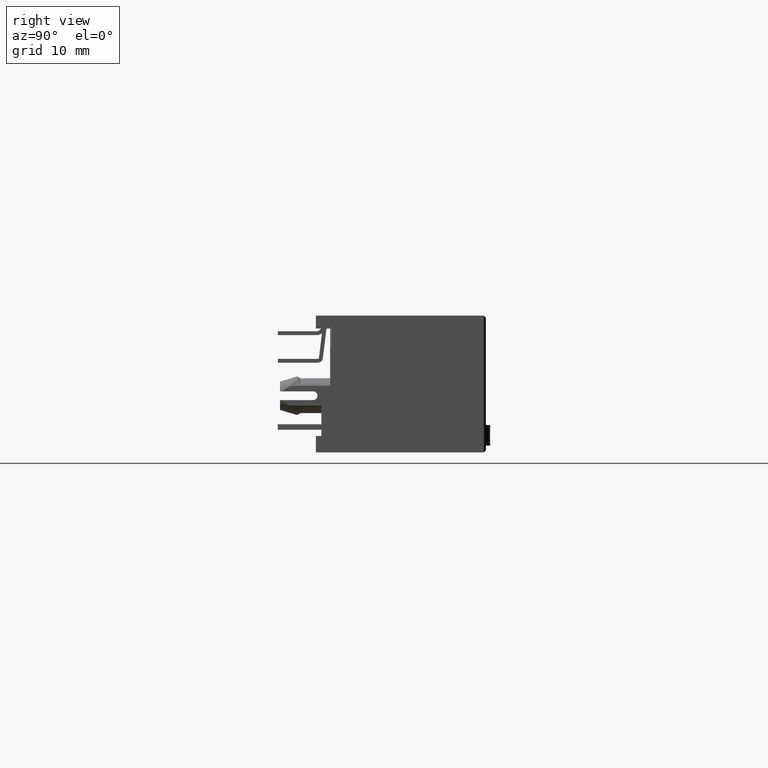
[diagram: clean part render]
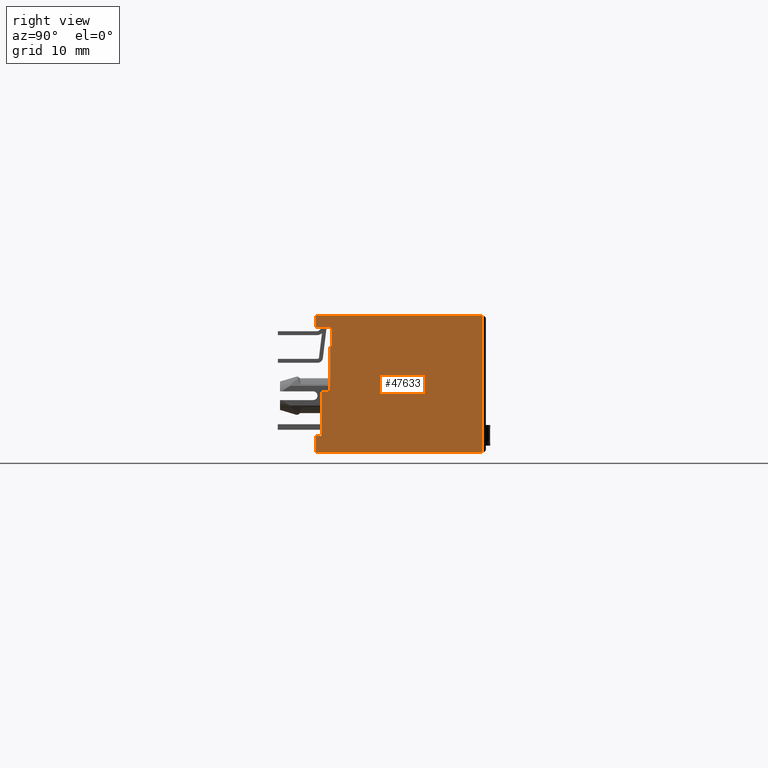
[diagram: same view with one face highlighted and labeled with its STEP entity id]
A machine part, right view. The second image highlights one B-rep face of the part: STEP entity #47633.
In plain terms, the highlighted planar face has unit normal (1, 0, 0).
Its self-contained STEP definition (entity closure, byte-faithful):
#681 = CARTESIAN_POINT ( 'NONE',  ( 31.50000000000000000, -7.799999999999999800, 5.250000000000000000 ) ) ;
#1622 = CARTESIAN_POINT ( 'NONE',  ( 31.50000000000000000, -6.349999999999997900, 3.449999999999999700 ) ) ;
#1845 = CARTESIAN_POINT ( 'NONE',  ( 31.49999999999801400, -6.349999999998009200, 4.649999999999999500 ) ) ;
#2806 = CARTESIAN_POINT ( 'NONE',  ( 31.50000000000000000, 7.499999999999996400, -2.066666666666667300 ) ) ;
#3329 = EDGE_CURVE ( 'NONE', #17004, #58897, #34667, .T. ) ;
#3683 = VERTEX_POINT ( 'NONE', #66092 ) ;
#3731 = ORIENTED_EDGE ( 'NONE', *, *, #48594, .T. ) ;
#4063 = ORIENTED_EDGE ( 'NONE', *, *, #62283, .F. ) ;
#4597 = CARTESIAN_POINT ( 'NONE',  ( 31.50000000000000000, -8.105999999999999900, 6.551000000000000200 ) ) ;
#4977 = EDGE_CURVE ( 'NONE', #25314, #41184, #49840, .T. ) ;
#5112 = CARTESIAN_POINT ( 'NONE',  ( 31.50000000000000000, -6.833333333333332100, 5.250000000000000000 ) ) ;
#5237 = CARTESIAN_POINT ( 'NONE',  ( 31.50000000000000000, -7.299999999999998900, -4.750000000000000900 ) ) ;
#6127 = CARTESIAN_POINT ( 'NONE',  ( 31.50000000000000000, -7.800000000000000700, 6.299999999999999800 ) ) ;
#6828 = CARTESIAN_POINT ( 'NONE',  ( 31.50000000000000000, -7.799999999999999800, 5.599999999999999600 ) ) ;
#7057 = ORIENTED_EDGE ( 'NONE', *, *, #60345, .F. ) ;
#8380 = EDGE_CURVE ( 'NONE', #33151, #22509, #26673, .T. ) ;
#8397 = CARTESIAN_POINT ( 'NONE',  ( 31.50000000000000000, -7.299999999999999800, -2.016666666666666200 ) ) ;
#10380 = CARTESIAN_POINT ( 'NONE',  ( 31.50000000000000000, -7.800000000000000700, -6.250000000000000000 ) ) ;
#10908 = B_SPLINE_CURVE_WITH_KNOTS ( 'NONE', 3,
 ( #48240, #5112, #37768, #53898 ),
 .UNSPECIFIED., .F., .F.,
 ( 4, 4 ),
 ( 0.0000000000000000000, 1.000000000000000000 ),
 .UNSPECIFIED. ) ;
#11488 = CARTESIAN_POINT ( 'NONE',  ( 31.50000000000000000, -6.500000000000000900, -0.6500000000000003600 ) ) ;
#12539 = CARTESIAN_POINT ( 'NONE',  ( 31.50000000000000000, -7.799999999999999800, 5.950000000000000200 ) ) ;
#13917 = ORIENTED_EDGE ( 'NONE', *, *, #46560, .F. ) ;
#15230 = CARTESIAN_POINT ( 'NONE',  ( 31.50000000000000000, -6.500000000000000900, 3.449999999999999700 ) ) ;
#15398 = CARTESIAN_POINT ( 'NONE',  ( 31.50000000000000000, -7.800000000000000700, -4.750000000000000900 ) ) ;
#16355 = CARTESIAN_POINT ( 'NONE',  ( 31.50000000000000000, -6.500000000000000900, -0.6500000000000003600 ) ) ;
#16621 = CARTESIAN_POINT ( 'NONE',  ( 31.50000000000000000, -7.466666666666666800, -4.750000000000000000 ) ) ;
#17004 = VERTEX_POINT ( 'NONE', #64333 ) ;
#17268 = CARTESIAN_POINT ( 'NONE',  ( 31.50000000000000000, -6.349999999999997900, 5.249999999999999100 ) ) ;
#18295 = VERTEX_POINT ( 'NONE', #20304 ) ;
#18755 = B_SPLINE_CURVE_WITH_KNOTS ( 'NONE', 3,
 ( #10380, #59410, #48537, #15398 ),
 .UNSPECIFIED., .F., .F.,
 ( 4, 4 ),
 ( 0.0000000000000000000, 1.000000000000000000 ),
 .UNSPECIFIED. ) ;
#18948 = ORIENTED_EDGE ( 'NONE', *, *, #43273, .F. ) ;
#19089 = VERTEX_POINT ( 'NONE', #55471 ) ;
#19770 = CARTESIAN_POINT ( 'NONE',  ( 31.50000000000000000, -6.349999999999997900, 3.449999999999999700 ) ) ;
#20304 = CARTESIAN_POINT ( 'NONE',  ( 31.50000000000000000, 7.500000000000000000, -6.250000000000000900 ) ) ;
#21029 = EDGE_CURVE ( 'NONE', #41184, #3683, #10908, .T. ) ;
#21528 = CARTESIAN_POINT ( 'NONE',  ( 31.50000000000000000, -7.800000000000000700, -4.750000000000000900 ) ) ;
#21626 = CARTESIAN_POINT ( 'NONE',  ( 31.50000000000000000, -6.500000000000000900, 0.7166666666666662300 ) ) ;
#22331 = CARTESIAN_POINT ( 'NONE',  ( 31.50000000000000000, -6.500000000000000900, 3.449999999999999700 ) ) ;
#22509 = VERTEX_POINT ( 'NONE', #54159 ) ;
#23873 = CARTESIAN_POINT ( 'NONE',  ( 31.50000000000000000, 2.399999999999999500, -6.249999999999999100 ) ) ;
#24111 = CARTESIAN_POINT ( 'NONE',  ( 31.50000000000000000, 7.500000000000000000, -6.250000000000000900 ) ) ;
#24301 = VERTEX_POINT ( 'NONE', #16355 ) ;
#25314 = VERTEX_POINT ( 'NONE', #55866 ) ;
#26673 = B_SPLINE_CURVE_WITH_KNOTS ( 'NONE', 3,
 ( #45847, #56952, #8397, #62414 ),
 .UNSPECIFIED., .F., .F.,
 ( 4, 4 ),
 ( 0.0000000000000000000, 1.000000000000000000 ),
 .UNSPECIFIED. ) ;
#27864 = EDGE_LOOP ( 'NONE', ( #7057, #44634, #29077, #18948, #13917, #4063, #49273, #39495, #35975, #38884, #3731, #56994 ) ) ;
#28836 = CARTESIAN_POINT ( 'NONE',  ( 31.49999999999801400, -6.349999999998009200, 4.049999999999999800 ) ) ;
#29077 = ORIENTED_EDGE ( 'NONE', *, *, #4977, .F. ) ;
#29619 = CARTESIAN_POINT ( 'NONE',  ( 31.50000000000000000, 2.399999999999999500, 6.299999999999999800 ) ) ;
#30087 = CARTESIAN_POINT ( 'NONE',  ( 31.50000000000000000, -7.800000000000000700, 6.299999999999999800 ) ) ;
#30800 = B_SPLINE_CURVE_WITH_KNOTS ( 'NONE', 3,
 ( #62279, #2806, #68930, #63457 ),
 .UNSPECIFIED., .F., .F.,
 ( 4, 4 ),
 ( 0.0000000000000000000, 1.000000000000000000 ),
 .UNSPECIFIED. ) ;
#32157 = CARTESIAN_POINT ( 'NONE',  ( 31.50000000000000000, -6.349999999999997900, 5.249999999999999100 ) ) ;
#32645 = CARTESIAN_POINT ( 'NONE',  ( 31.50000000000000000, -7.633333333333332900, -4.750000000000000000 ) ) ;
#33151 = VERTEX_POINT ( 'NONE', #46919 ) ;
#34667 = B_SPLINE_CURVE_WITH_KNOTS ( 'NONE', 3,
 ( #62581, #29619, #51695, #30087 ),
 .UNSPECIFIED., .F., .F.,
 ( 4, 4 ),
 ( 0.0000000000000000000, 1.000000000000000000 ),
 .UNSPECIFIED. ) ;
#34954 = FACE_OUTER_BOUND ( 'NONE', #27864, .T. ) ;
#35834 = B_SPLINE_CURVE_WITH_KNOTS ( 'NONE', 3,
 ( #41234, #41473, #57322, #62795 ),
 .UNSPECIFIED., .F., .F.,
 ( 4, 4 ),
 ( 0.0000000000000000000, 1.000000000000000000 ),
 .UNSPECIFIED. ) ;
#35975 = ORIENTED_EDGE ( 'NONE', *, *, #42445, .F. ) ;
#37768 = CARTESIAN_POINT ( 'NONE',  ( 31.50000000000000000, -7.316666666666666400, 5.250000000000000000 ) ) ;
#38884 = ORIENTED_EDGE ( 'NONE', *, *, #59487, .T. ) ;
#39495 = ORIENTED_EDGE ( 'NONE', *, *, #51757, .F. ) ;
#40672 = CARTESIAN_POINT ( 'NONE',  ( 31.50000000000000000, -6.399999999999998600, 3.449999999999999700 ) ) ;
#41184 = VERTEX_POINT ( 'NONE', #32157 ) ;
#41234 = CARTESIAN_POINT ( 'NONE',  ( 31.50000000000000000, -7.299999999999998900, -0.6500000000000003600 ) ) ;
#41473 = CARTESIAN_POINT ( 'NONE',  ( 31.50000000000000000, -7.033333333333333200, -0.6500000000000001300 ) ) ;
#41602 = AXIS2_PLACEMENT_3D ( 'NONE', #4597, #58382, #42277 ) ;
#42277 = DIRECTION ( 'NONE',  ( 0.0000000000000000000, 0.0000000000000000000, -1.000000000000000000 ) ) ;
#42445 = EDGE_CURVE ( 'NONE', #66449, #19089, #18755, .T. ) ;
#43273 = EDGE_CURVE ( 'NONE', #67081, #25314, #50432, .T. ) ;
#44634 = ORIENTED_EDGE ( 'NONE', *, *, #21029, .F. ) ;
#44822 = B_SPLINE_CURVE_WITH_KNOTS ( 'NONE', 3,
 ( #11488, #21626, #65058, #22331 ),
 .UNSPECIFIED., .F., .F.,
 ( 4, 4 ),
 ( 0.0000000000000000000, 1.000000000000000000 ),
 .UNSPECIFIED. ) ;
#45515 = B_SPLINE_CURVE_WITH_KNOTS ( 'NONE', 3,
 ( #51412, #56600, #23873, #24111 ),
 .UNSPECIFIED., .F., .F.,
 ( 4, 4 ),
 ( 0.0000000000000000000, 1.000000000000000000 ),
 .UNSPECIFIED. ) ;
#45847 = CARTESIAN_POINT ( 'NONE',  ( 31.50000000000000000, -7.299999999999998900, -4.750000000000000900 ) ) ;
#46341 = CARTESIAN_POINT ( 'NONE',  ( 31.50000000000000000, -6.500000000000000900, 3.449999999999999700 ) ) ;
#46560 = EDGE_CURVE ( 'NONE', #24301, #67081, #44822, .T. ) ;
#46919 = CARTESIAN_POINT ( 'NONE',  ( 31.50000000000000000, -7.299999999999998900, -4.750000000000000900 ) ) ;
#47633 = ADVANCED_FACE ( 'NONE', ( #34954 ), #64529, .T. ) ;
#48240 = CARTESIAN_POINT ( 'NONE',  ( 31.50000000000000000, -6.349999999999997900, 5.249999999999999100 ) ) ;
#48537 = CARTESIAN_POINT ( 'NONE',  ( 31.50000000000000000, -7.799999999999999800, -5.250000000000000000 ) ) ;
#48594 = EDGE_CURVE ( 'NONE', #18295, #17004, #30800, .T. ) ;
#49029 = CARTESIAN_POINT ( 'NONE',  ( 31.50000000000000000, -7.800000000000000700, 6.299999999999999800 ) ) ;
#49273 = ORIENTED_EDGE ( 'NONE', *, *, #8380, .F. ) ;
#49840 = B_SPLINE_CURVE_WITH_KNOTS ( 'NONE', 3,
 ( #1622, #28836, #1845, #17268 ),
 .UNSPECIFIED., .F., .F.,
 ( 4, 4 ),
 ( 0.0000000000000000000, 1.000000000000000000 ),
 .UNSPECIFIED. ) ;
#50432 = B_SPLINE_CURVE_WITH_KNOTS ( 'NONE', 3,
 ( #46341, #57900, #40672, #19770 ),
 .UNSPECIFIED., .F., .F.,
 ( 4, 4 ),
 ( 0.0000000000000000000, 1.000000000000000000 ),
 .UNSPECIFIED. ) ;
#51412 = CARTESIAN_POINT ( 'NONE',  ( 31.50000000000000000, -7.800000000000000700, -6.250000000000000000 ) ) ;
#51695 = CARTESIAN_POINT ( 'NONE',  ( 31.50000000000000000, -2.700000000000000200, 6.299999999999999800 ) ) ;
#51757 = EDGE_CURVE ( 'NONE', #19089, #33151, #69552, .T. ) ;
#53898 = CARTESIAN_POINT ( 'NONE',  ( 31.50000000000000000, -7.799999999999999800, 5.250000000000000000 ) ) ;
#54159 = CARTESIAN_POINT ( 'NONE',  ( 31.50000000000000000, -7.299999999999998900, -0.6500000000000003600 ) ) ;
#55471 = CARTESIAN_POINT ( 'NONE',  ( 31.50000000000000000, -7.800000000000000700, -4.750000000000000900 ) ) ;
#55866 = CARTESIAN_POINT ( 'NONE',  ( 31.50000000000000000, -6.349999999999997900, 3.449999999999999700 ) ) ;
#56600 = CARTESIAN_POINT ( 'NONE',  ( 31.50000000000000000, -2.700000000000001100, -6.249999999999999100 ) ) ;
#56952 = CARTESIAN_POINT ( 'NONE',  ( 31.50000000000000000, -7.299999999999999800, -3.383333333333332400 ) ) ;
#56994 = ORIENTED_EDGE ( 'NONE', *, *, #3329, .T. ) ;
#57322 = CARTESIAN_POINT ( 'NONE',  ( 31.50000000000000000, -6.766666666666666600, -0.6500000000000001300 ) ) ;
#57900 = CARTESIAN_POINT ( 'NONE',  ( 31.50000000000000000, -6.449999999999999300, 3.449999999999999700 ) ) ;
#58382 = DIRECTION ( 'NONE',  ( 1.000000000000000000, -0.0000000000000000000, 0.0000000000000000000 ) ) ;
#58479 = B_SPLINE_CURVE_WITH_KNOTS ( 'NONE', 3,
 ( #681, #6828, #12539, #6127 ),
 .UNSPECIFIED., .F., .F.,
 ( 4, 4 ),
 ( 0.0000000000000000000, 1.000000000000000000 ),
 .UNSPECIFIED. ) ;
#58897 = VERTEX_POINT ( 'NONE', #49029 ) ;
#59410 = CARTESIAN_POINT ( 'NONE',  ( 31.50000000000000000, -7.799999999999999800, -5.749999999999999100 ) ) ;
#59487 = EDGE_CURVE ( 'NONE', #66449, #18295, #45515, .T. ) ;
#60345 = EDGE_CURVE ( 'NONE', #3683, #58897, #58479, .T. ) ;
#62279 = CARTESIAN_POINT ( 'NONE',  ( 31.50000000000000000, 7.500000000000000000, -6.250000000000000900 ) ) ;
#62283 = EDGE_CURVE ( 'NONE', #22509, #24301, #35834, .T. ) ;
#62414 = CARTESIAN_POINT ( 'NONE',  ( 31.50000000000000000, -7.299999999999998900, -0.6500000000000003600 ) ) ;
#62581 = CARTESIAN_POINT ( 'NONE',  ( 31.50000000000000000, 7.500000000000000000, 6.299999999999999800 ) ) ;
#62795 = CARTESIAN_POINT ( 'NONE',  ( 31.50000000000000000, -6.500000000000000900, -0.6500000000000003600 ) ) ;
#63457 = CARTESIAN_POINT ( 'NONE',  ( 31.50000000000000000, 7.500000000000000000, 6.299999999999999800 ) ) ;
#64333 = CARTESIAN_POINT ( 'NONE',  ( 31.50000000000000000, 7.500000000000000000, 6.299999999999999800 ) ) ;
#64529 = PLANE ( 'NONE',  #41602 ) ;
#65058 = CARTESIAN_POINT ( 'NONE',  ( 31.50000000000000000, -6.500000000000000900, 2.083333333333333500 ) ) ;
#66092 = CARTESIAN_POINT ( 'NONE',  ( 31.50000000000000000, -7.799999999999999800, 5.250000000000000000 ) ) ;
#66449 = VERTEX_POINT ( 'NONE', #69386 ) ;
#67081 = VERTEX_POINT ( 'NONE', #15230 ) ;
#68930 = CARTESIAN_POINT ( 'NONE',  ( 31.50000000000000000, 7.499999999999996400, 2.116666666666666700 ) ) ;
#69386 = CARTESIAN_POINT ( 'NONE',  ( 31.50000000000000000, -7.800000000000000700, -6.250000000000000000 ) ) ;
#69552 = B_SPLINE_CURVE_WITH_KNOTS ( 'NONE', 3,
 ( #21528, #32645, #16621, #5237 ),
 .UNSPECIFIED., .F., .F.,
 ( 4, 4 ),
 ( 0.0000000000000000000, 1.000000000000000000 ),
 .UNSPECIFIED. ) ;